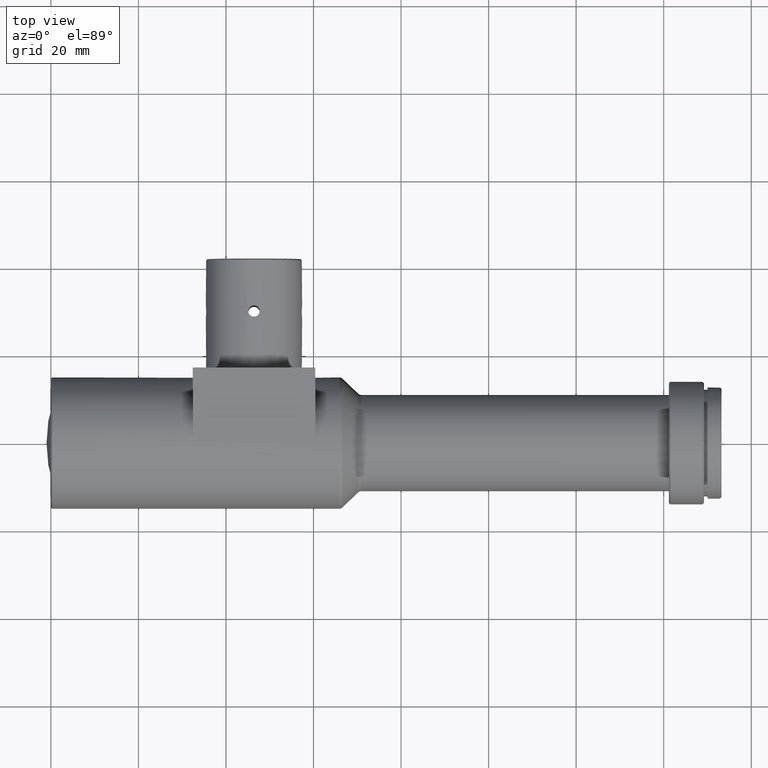
[diagram: clean part render]
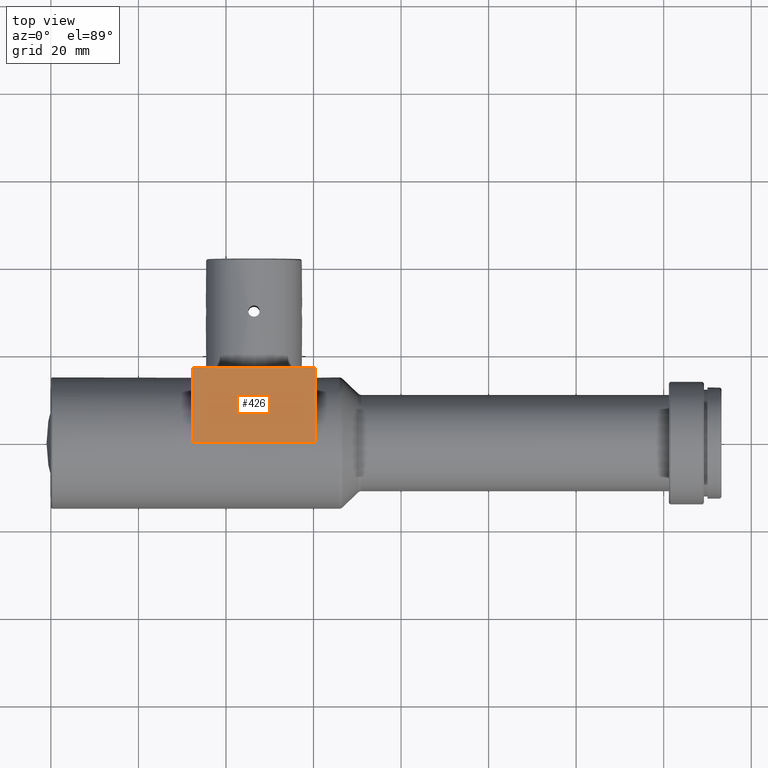
[diagram: same view with one face highlighted and labeled with its STEP entity id]
A machine part, top view. The second image highlights one B-rep face of the part: STEP entity #426.
In plain terms, the highlighted planar face has unit normal (0, 0, -1).
Its self-contained STEP definition (entity closure, byte-faithful):
#5 = CARTESIAN_POINT ( 'NONE',  ( 32.39999999999999147, 17.00000000000000000, 15.00000000000000888 ) ) ;
#11 = VERTEX_POINT ( 'NONE', #290 ) ;
#36 = DIRECTION ( 'NONE',  ( -0.000000000000000000, -1.000000000000000000, -0.000000000000000000 ) ) ;
#105 = DIRECTION ( 'NONE',  ( -1.000000000000000000, 0.000000000000000000, -0.000000000000000000 ) ) ;
#130 = VECTOR ( 'NONE', #36, 1000.000000000000000 ) ;
#136 = ORIENTED_EDGE ( 'NONE', *, *, #807, .F. ) ;
#147 = EDGE_CURVE ( 'NONE', #1181, #11, #1219, .T. ) ;
#220 = CARTESIAN_POINT ( 'NONE',  ( 32.39999999999999147, 17.00000000000000000, 15.00000000000000888 ) ) ;
#253 = LINE ( 'NONE', #566, #609 ) ;
#289 = FACE_OUTER_BOUND ( 'NONE', #637, .T. ) ;
#290 = CARTESIAN_POINT ( 'NONE',  ( 32.39999999999999147, -7.223610887662784690E-15, 15.00000000000000888 ) ) ;
#369 = ORIENTED_EDGE ( 'NONE', *, *, #1243, .F. ) ;
#375 = DIRECTION ( 'NONE',  ( 1.000000000000000000, -0.000000000000000000, 0.000000000000000000 ) ) ;
#426 = ADVANCED_FACE ( 'NONE', ( #289 ), #495, .F. ) ;
#495 = PLANE ( 'NONE',  #1104 ) ;
#539 = ORIENTED_EDGE ( 'NONE', *, *, #969, .F. ) ;
#550 = DIRECTION ( 'NONE',  ( -0.000000000000000000, -1.000000000000000000, -0.000000000000000000 ) ) ;
#566 = CARTESIAN_POINT ( 'NONE',  ( 32.39999999999999147, 17.00000000000000000, 15.00000000000000888 ) ) ;
#576 = VERTEX_POINT ( 'NONE', #1230 ) ;
#609 = VECTOR ( 'NONE', #375, 1000.000000000000000 ) ;
#637 = EDGE_LOOP ( 'NONE', ( #369, #539, #740, #136 ) ) ;
#684 = LINE ( 'NONE', #874, #828 ) ;
#695 = VERTEX_POINT ( 'NONE', #1030 ) ;
#740 = ORIENTED_EDGE ( 'NONE', *, *, #147, .T. ) ;
#783 = DIRECTION ( 'NONE',  ( 0.000000000000000000, 0.000000000000000000, -1.000000000000000000 ) ) ;
#807 = EDGE_CURVE ( 'NONE', #695, #11, #684, .T. ) ;
#809 = VECTOR ( 'NONE', #550, 1000.000000000000000 ) ;
#828 = VECTOR ( 'NONE', #1182, 1000.000000000000000 ) ;
#874 = CARTESIAN_POINT ( 'NONE',  ( 2.600000000000004974, -6.112098187161271796E-15, 15.00000000000000888 ) ) ;
#936 = LINE ( 'NONE', #1016, #809 ) ;
#969 = EDGE_CURVE ( 'NONE', #1181, #576, #253, .T. ) ;
#999 = CARTESIAN_POINT ( 'NONE',  ( 32.39999999999999147, 17.00000000000000000, 15.00000000000000888 ) ) ;
#1016 = CARTESIAN_POINT ( 'NONE',  ( 60.39999999999999858, 17.00000000000000000, 15.00000000000000888 ) ) ;
#1030 = CARTESIAN_POINT ( 'NONE',  ( 60.39999999999999858, -4.005256723311098228E-15, 15.00000000000000888 ) ) ;
#1104 = AXIS2_PLACEMENT_3D ( 'NONE', #5, #783, #105 ) ;
#1181 = VERTEX_POINT ( 'NONE', #220 ) ;
#1182 = DIRECTION ( 'NONE',  ( -1.000000000000000000, -1.149412201554173596E-16, -0.000000000000000000 ) ) ;
#1219 = LINE ( 'NONE', #999, #130 ) ;
#1230 = CARTESIAN_POINT ( 'NONE',  ( 60.39999999999999147, 17.00000000000000000, 15.00000000000000888 ) ) ;
#1243 = EDGE_CURVE ( 'NONE', #576, #695, #936, .T. ) ;